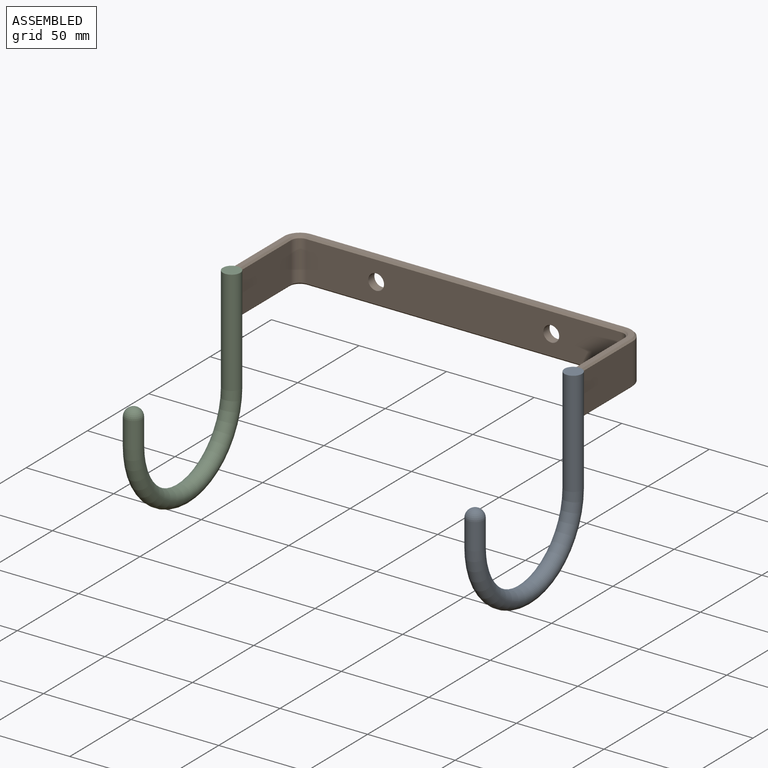
[diagram: assembled view]
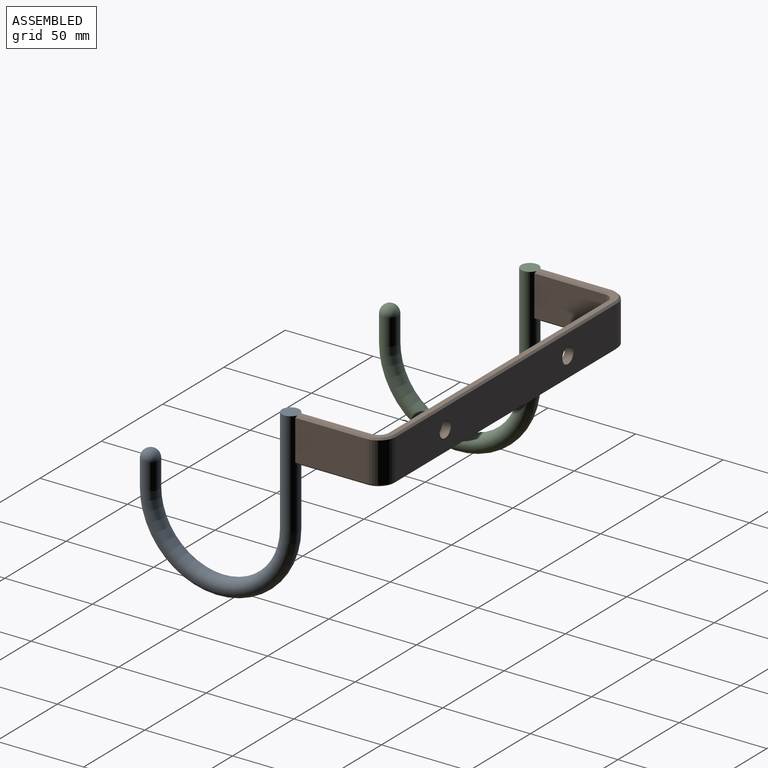
[diagram: assembled view, second angle]
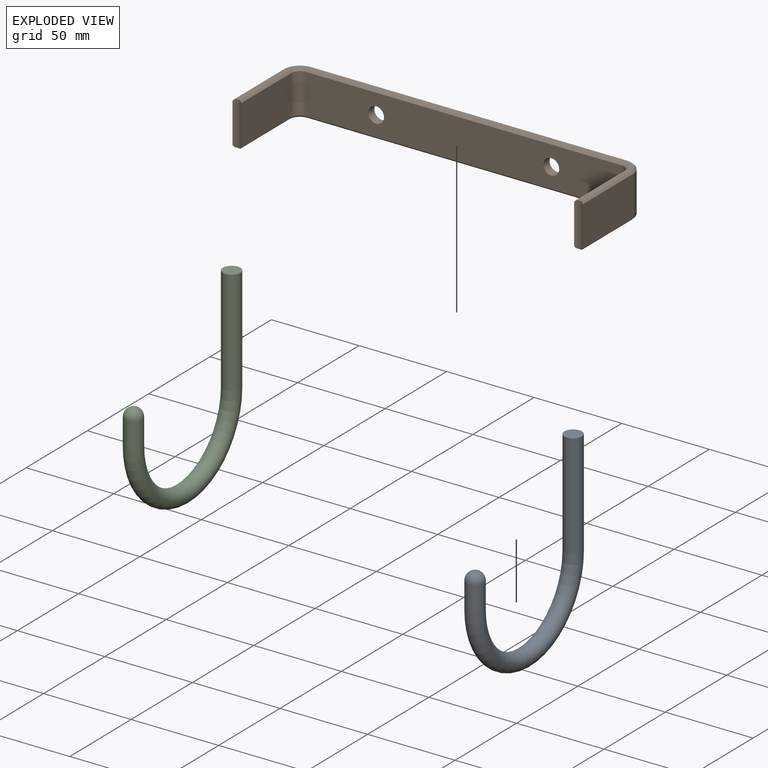
[diagram: exploded view]
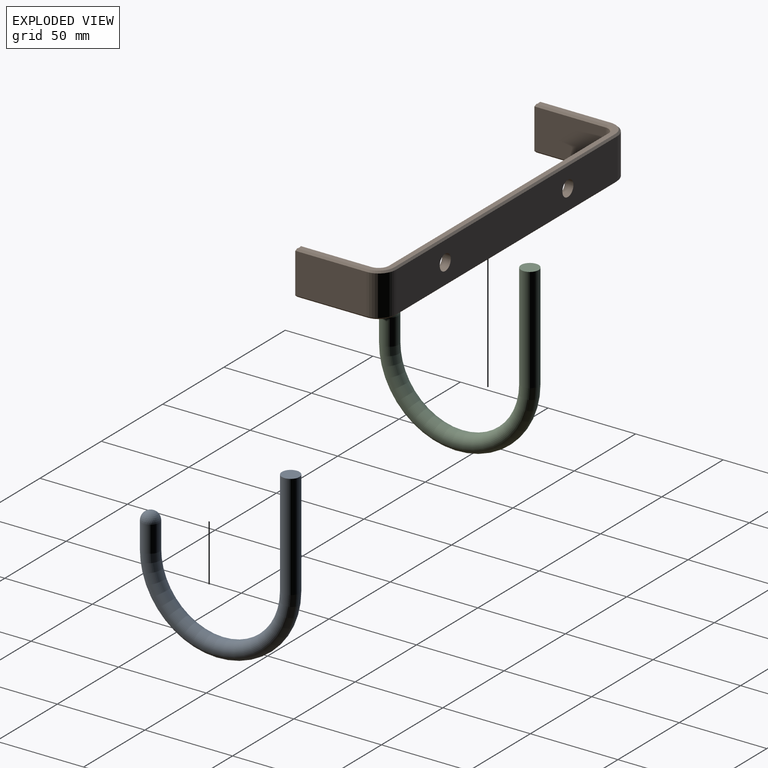
[diagram: exploded view, second angle]
ASSEMBLY  parts=3 mates=2
PART A: 5 faces, bbox 10x97.4x108.7 mm
  f0: plane 10x10mm, normal (0,0,1), area 78.5mm2, adj f1
  f1: cylinder r=5mm len=60mm, axis (0,0,-1), area 1885mm2, adj f0,f2
  f2: torus R=40mm, axis (-1,0,0), area 3947.8mm2, adj f1,f3
  f3: cylinder r=5mm len=15mm, axis (0,0,1), area 471.2mm2, adj f2,f4
  f4: sphere r=5mm, area 157.1mm2, adj f3
PART B: 36 faces, bbox 200x50.7x25 mm
  f0: cylinder r=5mm len=25mm, axis (0,0,1), area 128.7mm2, adj f1,f11,f12,f13,f19,f24,f26,f34
  f1: plane 40.67x23mm, normal (1,0,0), area 935.4mm2, adj f0,f2,f24,f26
  f2: cylinder r=5mm len=23mm, axis (0,0,1), area 180.6mm2, adj f1,f3,f25,f27
  f3: plane 180x23mm, normal (0,-1,0), area 4012.8mm2, adj f2,f4,f14,f15,f23,f29
  f4: cylinder r=5mm len=23mm, axis (0,0,1), area 180.6mm2, adj f3,f5,f22,f30
  f5: plane 40.67x23mm, normal (-1,0,0), area 935.4mm2, adj f4,f6,f21,f28
  f6: cylinder r=5mm len=25mm, axis (0,0,1), area 128.7mm2, adj f5,f7,f12,f13,f16,f21,f28,f31
  f7: plane 40.67x23mm, normal (1,0,0), area 935.4mm2, adj f6,f8,f16,f31
  f8: cylinder r=10mm len=23mm, axis (0,0,1), area 361.3mm2, adj f7,f9,f17,f32
  f9: plane 180x23mm, normal (0,1,0), area 4012.8mm2, adj f8,f10,f14,f15,f18,f33
  f10: cylinder r=10mm len=23mm, axis (0,0,1), area 361.3mm2, adj f9,f11,f20,f35
  f11: plane 40.67x23mm, normal (-1,0,0), area 935.4mm2, adj f0,f10,f19,f34
  f12: plane 198x49.23mm, normal (0,0,-1), area 851.1mm2, adj f0,f6,f16,f17,f18,f19,f20,f21
  f13: plane 198x49.23mm, normal (0,0,1), area 851.1mm2, adj f0,f6,f26,f27,f28,f29,f30,f31
  f14: cylinder r=4.5mm len=9mm, axis (0,-1,0), area 141.4mm2, adj f3,f9
  f15: cylinder r=4.5mm len=9mm, axis (0,-1,0), area 141.4mm2, adj f3,f9
  f16: plane 40.67x1mm, normal (0.71,0,-0.71), area 57.2mm2, adj f6,f7,f12,f17
  f17: cone r=10mm half-angle=45deg, axis (0,0,1), area 21.1mm2, adj f8,f12,f16,f18
  f18: plane 180x1mm, normal (0,0.71,-0.71), area 254.6mm2, adj f9,f12,f17,f20
  f19: plane 40.67x1mm, normal (-0.71,0,-0.71), area 57.2mm2, adj f0,f11,f12,f20
  f20: cone r=10mm half-angle=45deg, axis (0,0,1), area 21.1mm2, adj f10,f12,f18,f19
  f21: plane 40.67x1mm, normal (-0.71,0,-0.71), area 57.2mm2, adj f5,f6,f12,f22
  f22: cone r=6mm half-angle=45deg, axis (0,0,-1), area 12.2mm2, adj f4,f12,f21,f23
  f23: plane 180x1mm, normal (0,-0.71,-0.71), area 254.6mm2, adj f3,f12,f22,f25
  f24: plane 40.67x1mm, normal (0.71,0,-0.71), area 57.2mm2, adj f0,f1,f12,f25
  f25: cone r=6mm half-angle=45deg, axis (0,0,-1), area 12.2mm2, adj f2,f12,f23,f24
  f26: plane 40.67x1mm, normal (0.71,0,0.71), area 57.2mm2, adj f0,f1,f13,f27
  f27: cone r=5mm half-angle=45deg, axis (0,0,1), area 12.2mm2, adj f2,f13,f26,f29
  f28: plane 40.67x1mm, normal (-0.71,0,0.71), area 57.2mm2, adj f5,f6,f13,f30
  f29: plane 180x1mm, normal (0,-0.71,0.71), area 254.6mm2, adj f3,f13,f27,f30
  f30: cone r=5mm half-angle=45deg, axis (0,0,1), area 12.2mm2, adj f4,f13,f28,f29
  f31: plane 40.67x1mm, normal (0.71,0,0.71), area 57.2mm2, adj f6,f7,f13,f32
  f32: cone r=9mm half-angle=45deg, axis (0,0,-1), area 21.1mm2, adj f8,f13,f31,f33
  f33: plane 180x1mm, normal (0,0.71,0.71), area 254.6mm2, adj f9,f13,f32,f35
  f34: plane 40.67x1mm, normal (-0.71,0,0.71), area 57.2mm2, adj f0,f11,f13,f35
  f35: cone r=9mm half-angle=45deg, axis (0,0,-1), area 21.1mm2, adj f10,f13,f33,f34
PART C: same geometry as A
PLACE A t=(-21.93,83.6,122.64)mm
PLACE B t=(-21.93,83.6,122.64)mm
PLACE C t=(-216.93,83.6,122.64)mm
MATE fastened C.f1 <-> B.f0  axis (0,0,1) through (-119.43,31.1,122.64)mm
MATE fastened A.f1 <-> B.f6  axis (0,0,1) through (75.57,31.1,122.64)mm
